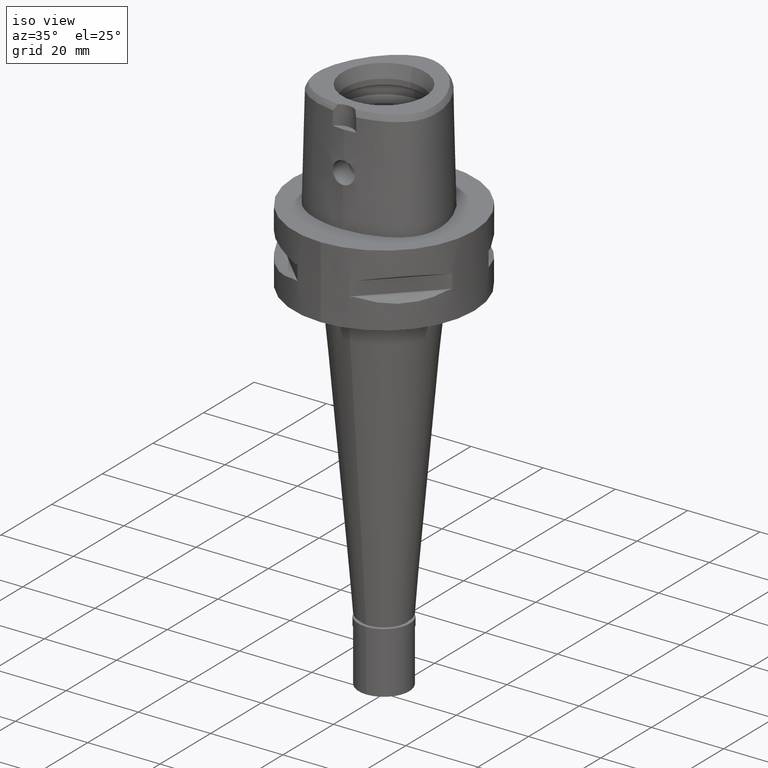
[diagram: clean part render]
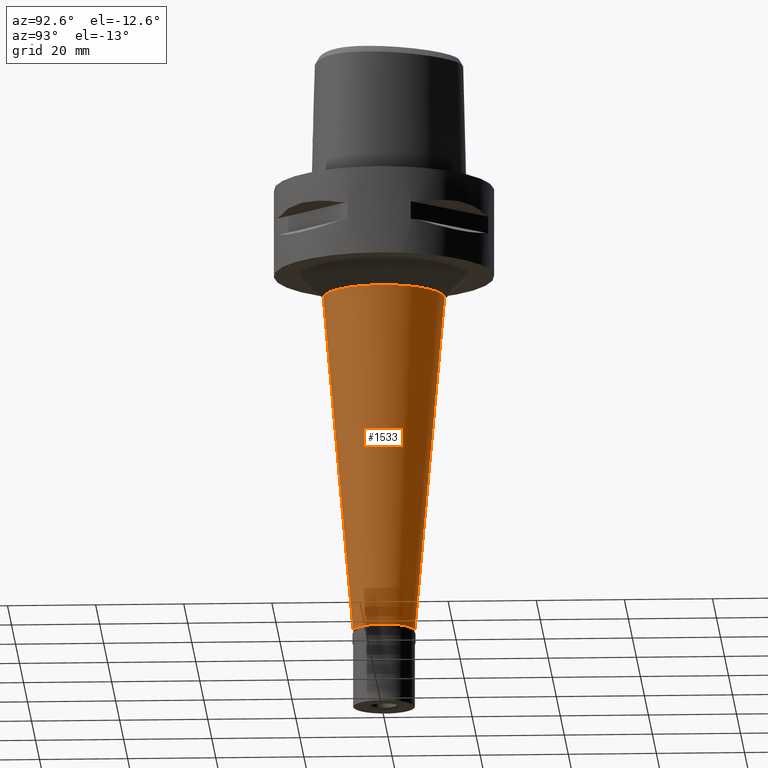
[diagram: tour spotlight — one face highlighted and labeled with its STEP entity id]
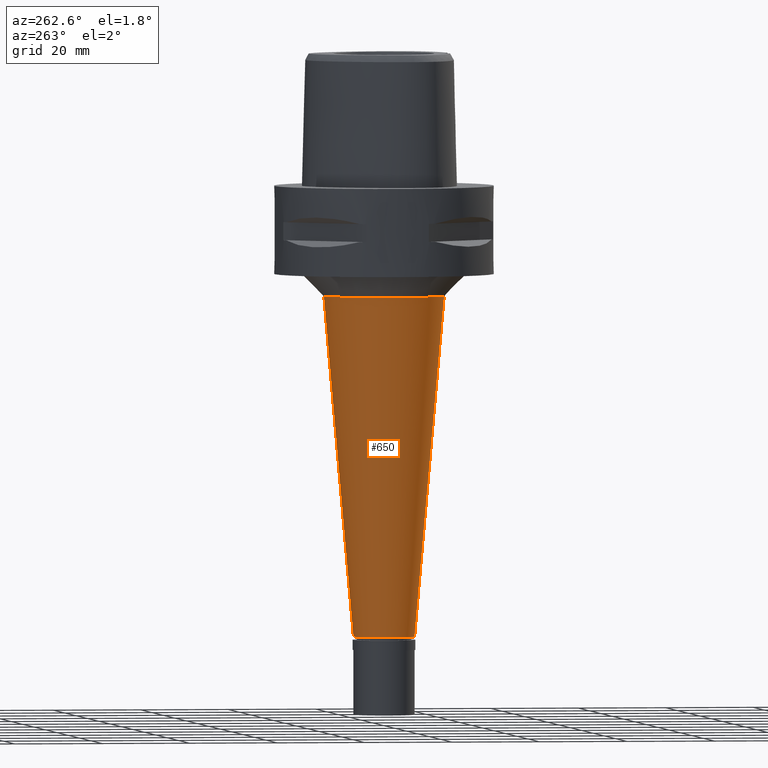
[diagram: tour spotlight — one face highlighted and labeled with its STEP entity id]
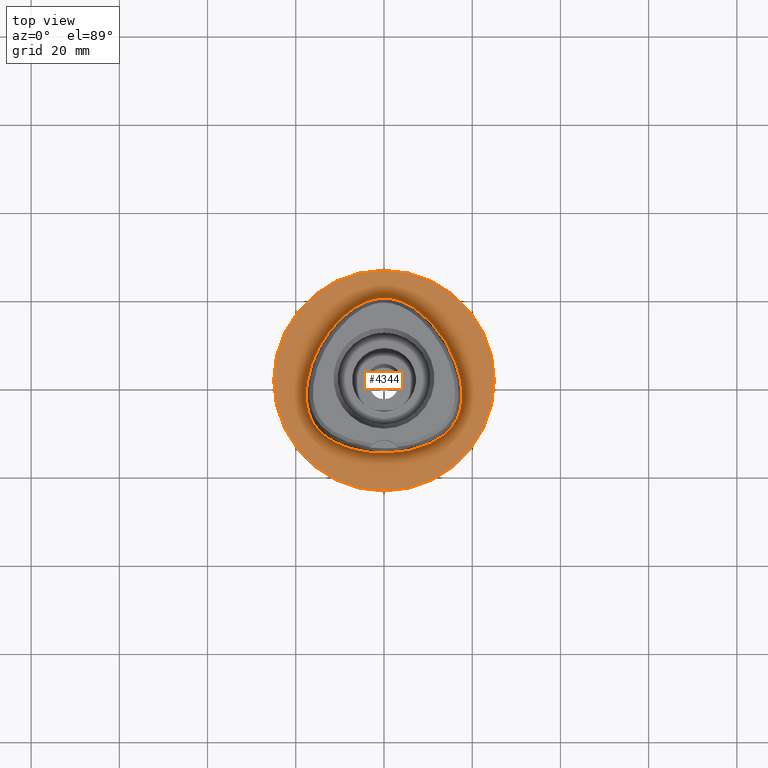
[diagram: tour spotlight — one face highlighted and labeled with its STEP entity id]
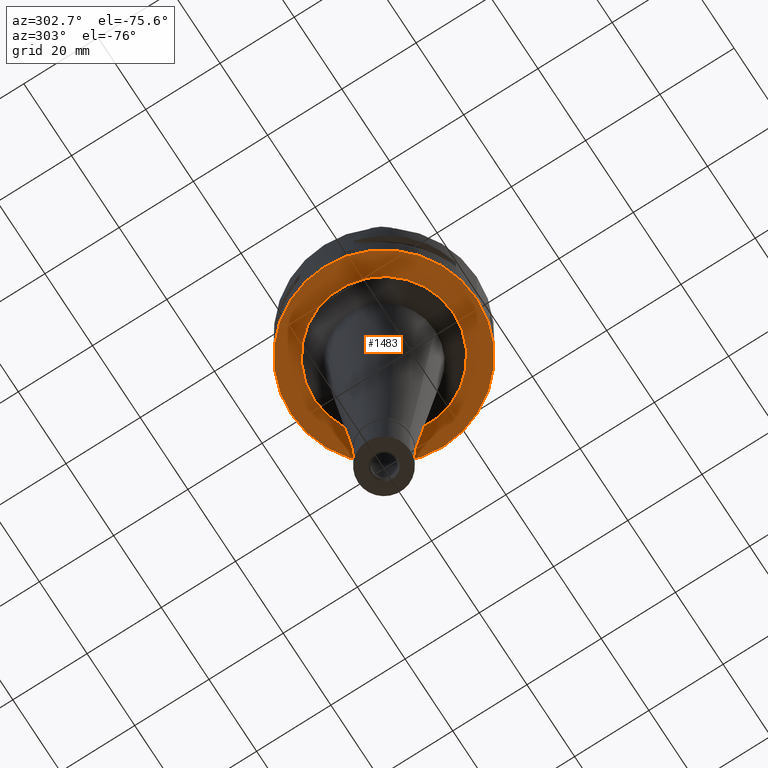
[diagram: tour spotlight — one face highlighted and labeled with its STEP entity id]
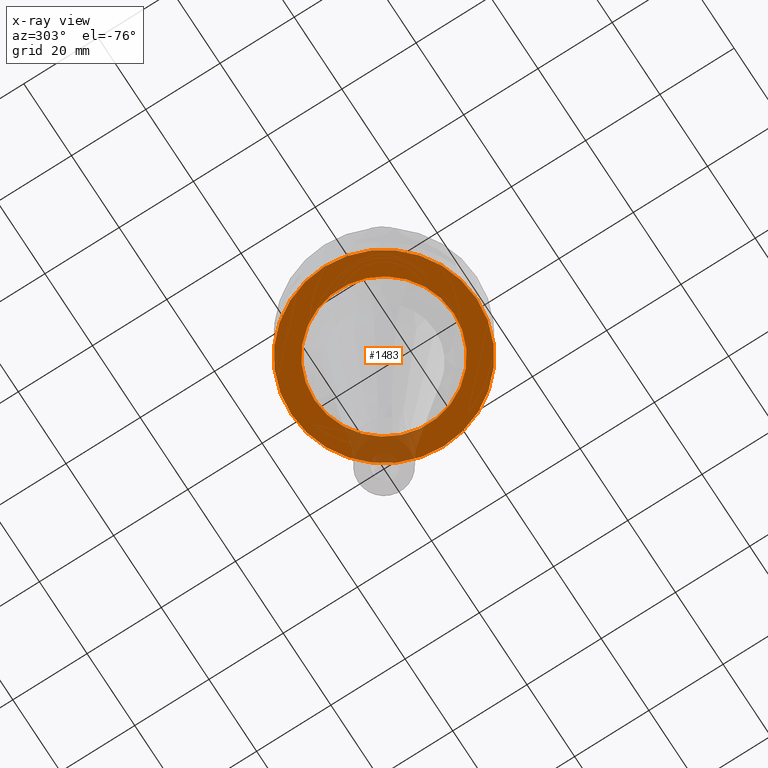
[diagram: x-ray of the same camera — body ghosted, this tour face saturated]
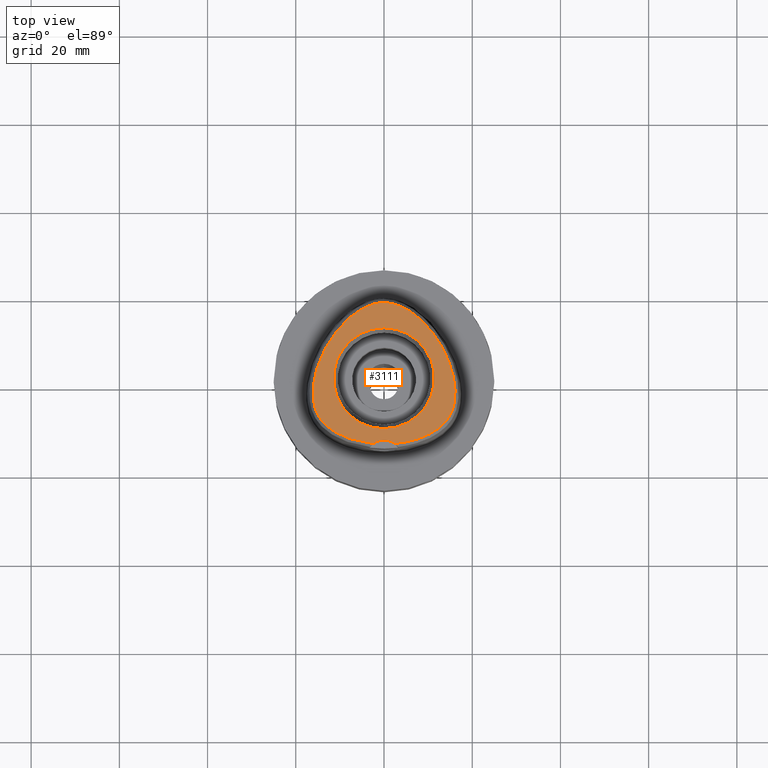
[diagram: tour spotlight — one face highlighted and labeled with its STEP entity id]
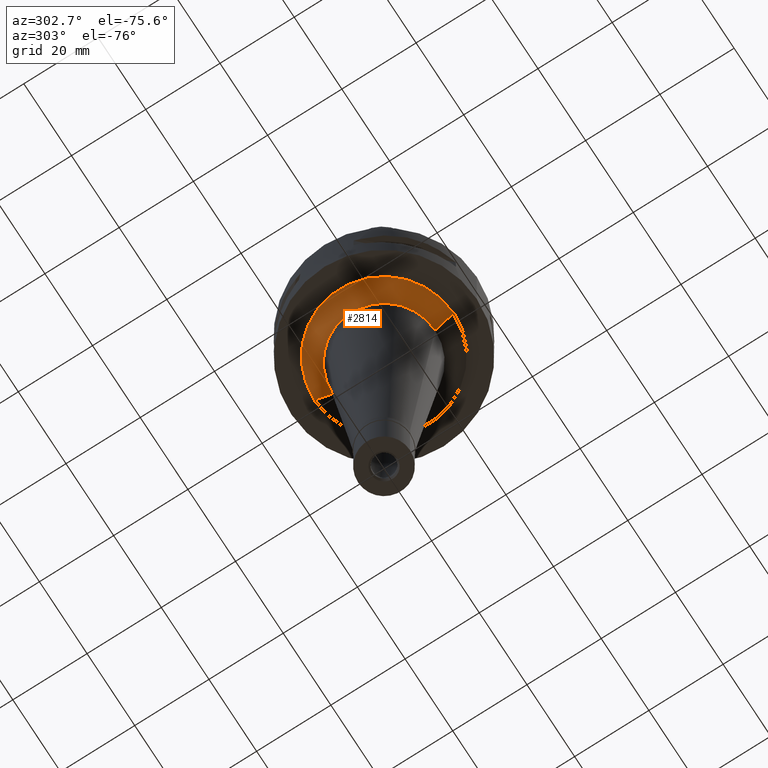
[diagram: tour spotlight — one face highlighted and labeled with its STEP entity id]
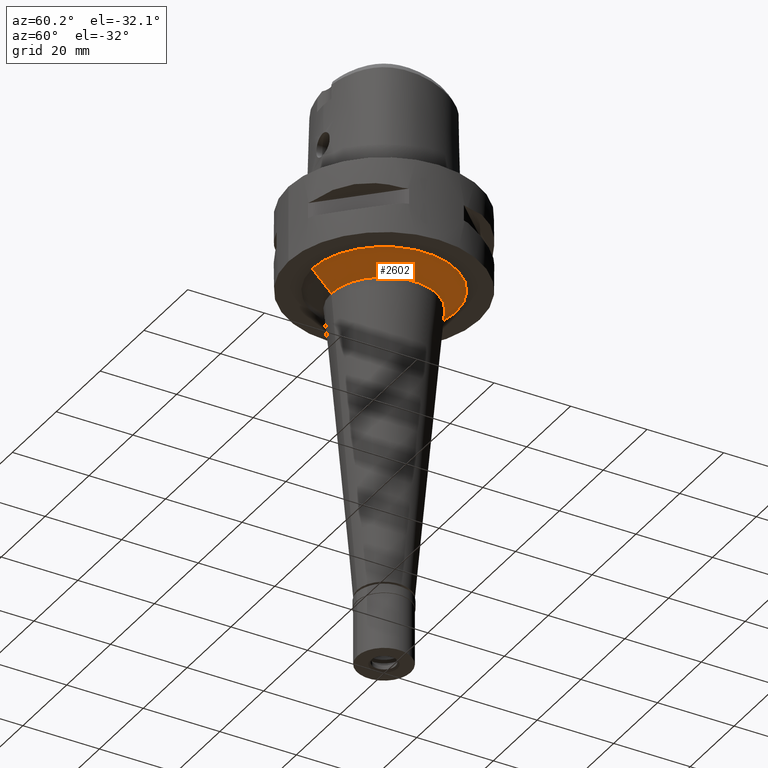
[diagram: tour spotlight — one face highlighted and labeled with its STEP entity id]
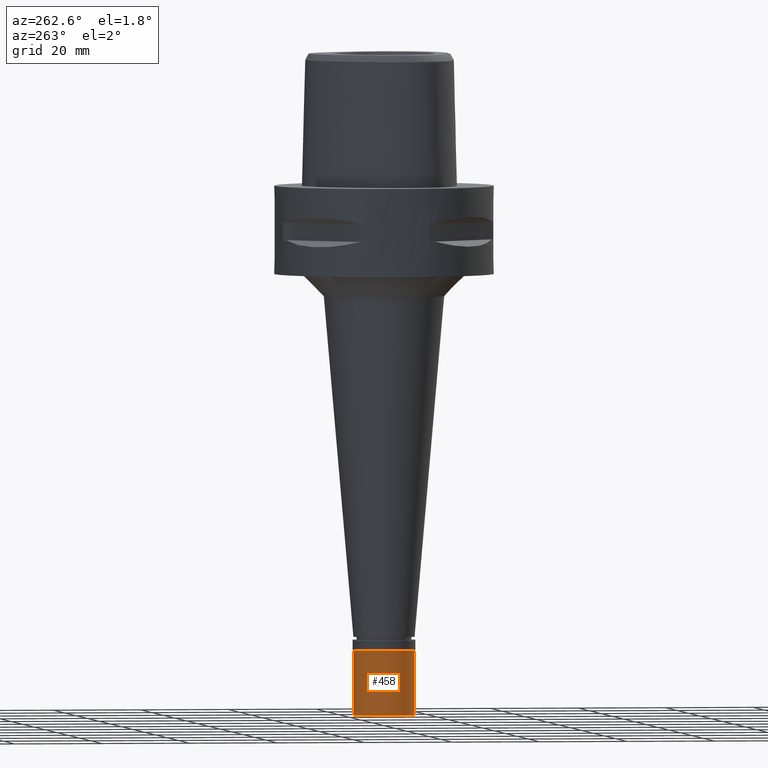
[diagram: tour spotlight — one face highlighted and labeled with its STEP entity id]
A machine part: a face-by-face anatomy tour. The part has 93 B-rep faces; the first image is the clean iso view, then the 8 largest visible faces are spotlighted one at a time (largest first), each with its STEP entity span.

Face 1 — auxiliary view, entity #1533. In plain terms, the highlighted conical surface has half-angle 5 deg.
Definition (entity closure, byte-faithful):
#105 = FACE_OUTER_BOUND ( 'NONE', #4022, .T. ) ;
#202 = VECTOR ( 'NONE', #1246, 1000.000000000000114 ) ;
#260 = EDGE_CURVE ( 'NONE', #1053, #1766, #4054, .T. ) ;
#551 = EDGE_CURVE ( 'NONE', #1766, #2053, #1741, .T. ) ;
#594 = CARTESIAN_POINT ( 'NONE',  ( 0.0000000000000000000, 0.0000000000000000000, -25.00000000000000000 ) ) ;
#649 = CARTESIAN_POINT ( 'NONE',  ( 0.0000000000000000000, 0.0000000000000000000, -102.2999999999999972 ) ) ;
#827 = CARTESIAN_POINT ( 'NONE',  ( 0.0000000000000000000, -13.76287369054999843, -25.00000000000000000 ) ) ;
#845 = DIRECTION ( 'NONE',  ( 0.0000000000000000000, 1.000000000000000000, 0.0000000000000000000 ) ) ;
#1053 = VERTEX_POINT ( 'NONE', #827 ) ;
#1124 = VECTOR ( 'NONE', #1844, 1000.000000000000114 ) ;
#1175 = AXIS2_PLACEMENT_3D ( 'NONE', #649, #4660, #4682 ) ;
#1200 = LINE ( 'NONE', #4490, #202 ) ;
#1246 = DIRECTION ( 'NONE',  ( 0.0000000000000000000, -0.08715574274763414342, -0.9961946980917475436 ) ) ;
#1341 = DIRECTION ( 'NONE',  ( 0.0000000000000000000, -1.000000000000000000, 0.0000000000000000000 ) ) ;
#1533 = ADVANCED_FACE ( 'NONE', ( #105 ), #3408, .T. ) ;
#1560 = ORIENTED_EDGE ( 'NONE', *, *, #260, .T. ) ;
#1741 = CIRCLE ( 'NONE', #1175, 7.000000000003000267 ) ;
#1766 = VERTEX_POINT ( 'NONE', #2883 ) ;
#1844 = DIRECTION ( 'NONE',  ( 0.0000000000000000000, 0.08715574274763414342, -0.9961946980917475436 ) ) ;
#1975 = ORIENTED_EDGE ( 'NONE', *, *, #4073, .F. ) ;
#2053 = VERTEX_POINT ( 'NONE', #2332 ) ;
#2275 = CARTESIAN_POINT ( 'NONE',  ( 0.0000000000000000000, -13.76287369054999843, -25.00000000000000000 ) ) ;
#2332 = CARTESIAN_POINT ( 'NONE',  ( 0.0000000000000000000, 7.000000000002000178, -102.2999999999999972 ) ) ;
#2793 = ORIENTED_EDGE ( 'NONE', *, *, #3757, .F. ) ;
#2883 = CARTESIAN_POINT ( 'NONE',  ( 0.0000000000000000000, -7.000000000003000267, -102.2999999999999972 ) ) ;
#2954 = ORIENTED_EDGE ( 'NONE', *, *, #551, .T. ) ;
#3408 = CONICAL_SURFACE ( 'NONE', #4631, 10.38143684527999966, 0.08726646259969973729 ) ;
#3442 = DIRECTION ( 'NONE',  ( 0.0000000000000000000, 0.0000000000000000000, 1.000000000000000000 ) ) ;
#3757 = EDGE_CURVE ( 'NONE', #4033, #2053, #1200, .T. ) ;
#3763 = CIRCLE ( 'NONE', #4523, 13.76287369055999932 ) ;
#3971 = DIRECTION ( 'NONE',  ( 0.0000000000000000000, 0.0000000000000000000, 1.000000000000000000 ) ) ;
#4022 = EDGE_LOOP ( 'NONE', ( #1975, #1560, #2954, #2793 ) ) ;
#4033 = VERTEX_POINT ( 'NONE', #4661 ) ;
#4054 = LINE ( 'NONE', #2275, #1124 ) ;
#4073 = EDGE_CURVE ( 'NONE', #1053, #4033, #3763, .T. ) ;
#4180 = CARTESIAN_POINT ( 'NONE',  ( 0.0000000000000000000, 0.0000000000000000000, -63.64999999999999858 ) ) ;
#4490 = CARTESIAN_POINT ( 'NONE',  ( 0.0000000000000000000, 13.76287369054999843, -25.00000000000000000 ) ) ;
#4523 = AXIS2_PLACEMENT_3D ( 'NONE', #594, #3971, #1341 ) ;
#4631 = AXIS2_PLACEMENT_3D ( 'NONE', #4180, #3442, #845 ) ;
#4660 = DIRECTION ( 'NONE',  ( 0.0000000000000000000, 0.0000000000000000000, 1.000000000000000000 ) ) ;
#4661 = CARTESIAN_POINT ( 'NONE',  ( 0.0000000000000000000, 13.76287369054999843, -25.00000000000000000 ) ) ;
#4682 = DIRECTION ( 'NONE',  ( 0.0000000000000000000, -1.000000000000000000, 0.0000000000000000000 ) ) ;

Face 2 — auxiliary view, entity #650. In plain terms, the highlighted conical surface has half-angle 5 deg.
Definition (entity closure, byte-faithful):
#202 = VECTOR ( 'NONE', #1246, 1000.000000000000114 ) ;
#235 = DIRECTION ( 'NONE',  ( 0.0000000000000000000, 1.000000000000000000, 0.0000000000000000000 ) ) ;
#260 = EDGE_CURVE ( 'NONE', #1053, #1766, #4054, .T. ) ;
#545 = DIRECTION ( 'NONE',  ( 0.0000000000000000000, -1.000000000000000000, 0.0000000000000000000 ) ) ;
#593 = CARTESIAN_POINT ( 'NONE',  ( 0.0000000000000000000, 0.0000000000000000000, -63.64999999999999858 ) ) ;
#650 = ADVANCED_FACE ( 'NONE', ( #2841 ), #1551, .T. ) ;
#759 = EDGE_CURVE ( 'NONE', #1053, #4033, #1477, .T. ) ;
#827 = CARTESIAN_POINT ( 'NONE',  ( 0.0000000000000000000, -13.76287369054999843, -25.00000000000000000 ) ) ;
#883 = EDGE_LOOP ( 'NONE', ( #940, #1633, #2968, #4197 ) ) ;
#940 = ORIENTED_EDGE ( 'NONE', *, *, #1399, .T. ) ;
#1053 = VERTEX_POINT ( 'NONE', #827 ) ;
#1124 = VECTOR ( 'NONE', #1844, 1000.000000000000114 ) ;
#1138 = DIRECTION ( 'NONE',  ( 0.0000000000000000000, 0.0000000000000000000, 1.000000000000000000 ) ) ;
#1178 = CIRCLE ( 'NONE', #1256, 7.000000000003000267 ) ;
#1200 = LINE ( 'NONE', #4490, #202 ) ;
#1246 = DIRECTION ( 'NONE',  ( 0.0000000000000000000, -0.08715574274763414342, -0.9961946980917475436 ) ) ;
#1256 = AXIS2_PLACEMENT_3D ( 'NONE', #1493, #1138, #3732 ) ;
#1399 = EDGE_CURVE ( 'NONE', #2053, #1766, #1178, .T. ) ;
#1417 = DIRECTION ( 'NONE',  ( 0.0000000000000000000, 0.0000000000000000000, -1.000000000000000000 ) ) ;
#1477 = CIRCLE ( 'NONE', #2495, 13.76287369054999843 ) ;
#1493 = CARTESIAN_POINT ( 'NONE',  ( 0.0000000000000000000, 0.0000000000000000000, -102.2999999999999972 ) ) ;
#1551 = CONICAL_SURFACE ( 'NONE', #3785, 10.38143684527999966, 0.08726646259969973729 ) ;
#1633 = ORIENTED_EDGE ( 'NONE', *, *, #260, .F. ) ;
#1766 = VERTEX_POINT ( 'NONE', #2883 ) ;
#1784 = CARTESIAN_POINT ( 'NONE',  ( 0.0000000000000000000, 0.0000000000000000000, -25.00000000000000000 ) ) ;
#1844 = DIRECTION ( 'NONE',  ( 0.0000000000000000000, 0.08715574274763414342, -0.9961946980917475436 ) ) ;
#2053 = VERTEX_POINT ( 'NONE', #2332 ) ;
#2275 = CARTESIAN_POINT ( 'NONE',  ( 0.0000000000000000000, -13.76287369054999843, -25.00000000000000000 ) ) ;
#2332 = CARTESIAN_POINT ( 'NONE',  ( 0.0000000000000000000, 7.000000000002000178, -102.2999999999999972 ) ) ;
#2495 = AXIS2_PLACEMENT_3D ( 'NONE', #1784, #1417, #545 ) ;
#2841 = FACE_OUTER_BOUND ( 'NONE', #883, .T. ) ;
#2883 = CARTESIAN_POINT ( 'NONE',  ( 0.0000000000000000000, -7.000000000003000267, -102.2999999999999972 ) ) ;
#2968 = ORIENTED_EDGE ( 'NONE', *, *, #759, .T. ) ;
#3732 = DIRECTION ( 'NONE',  ( 0.0000000000000000000, 1.000000000000000000, 0.0000000000000000000 ) ) ;
#3757 = EDGE_CURVE ( 'NONE', #4033, #2053, #1200, .T. ) ;
#3785 = AXIS2_PLACEMENT_3D ( 'NONE', #593, #4603, #235 ) ;
#4033 = VERTEX_POINT ( 'NONE', #4661 ) ;
#4054 = LINE ( 'NONE', #2275, #1124 ) ;
#4197 = ORIENTED_EDGE ( 'NONE', *, *, #3757, .T. ) ;
#4490 = CARTESIAN_POINT ( 'NONE',  ( 0.0000000000000000000, 13.76287369054999843, -25.00000000000000000 ) ) ;
#4603 = DIRECTION ( 'NONE',  ( 0.0000000000000000000, 0.0000000000000000000, 1.000000000000000000 ) ) ;
#4661 = CARTESIAN_POINT ( 'NONE',  ( 0.0000000000000000000, 13.76287369054999843, -25.00000000000000000 ) ) ;

Face 3 — top view, entity #4344. In plain terms, the highlighted planar face has unit normal (0, 0, -1).
Definition (entity closure, byte-faithful):
#44 = AXIS2_PLACEMENT_3D ( 'NONE', #817, #2669, #1226 ) ;
#69 = CARTESIAN_POINT ( 'NONE',  ( 0.6801907859354098251, 18.69499999999559847, 1.266890238549311931E-13 ) ) ;
#155 = EDGE_CURVE ( 'NONE', #4419, #3645, #864, .T. ) ;
#170 = CARTESIAN_POINT ( 'NONE',  ( 6.327245477132999772E-11, 18.69499999997999851, 1.283047742124999982E-13 ) ) ;
#230 = EDGE_CURVE ( 'NONE', #1382, #1618, #4439, .T. ) ;
#282 = EDGE_LOOP ( 'NONE', ( #4759, #2574 ) ) ;
#330 = CARTESIAN_POINT ( 'NONE',  ( 5.051093167571571563, -16.15562500000254431, 1.266890238549311931E-13 ) ) ;
#394 = CARTESIAN_POINT ( 'NONE',  ( -2.040572357783139612, 18.55015625055377981, -2.252703186207509478E-08 ) ) ;
#396 = CARTESIAN_POINT ( 'NONE',  ( 14.38008119689788167, 8.302343749999957723, 1.266890238549311931E-13 ) ) ;
#497 = FACE_BOUND ( 'NONE', #2461, .T. ) ;
#595 = AXIS2_PLACEMENT_3D ( 'NONE', #4779, #4058, #2963 ) ;
#758 = CARTESIAN_POINT ( 'NONE',  ( 17.49754712306940618, -0.2285937500000930489, 1.266890238549311931E-13 ) ) ;
#817 = CARTESIAN_POINT ( 'NONE',  ( 0.0000000000000000000, 1.224646799146999965E-14, 0.0000000000000000000 ) ) ;
#864 = CIRCLE ( 'NONE', #3965, 25.00000000000000000 ) ;
#1072 = CARTESIAN_POINT ( 'NONE',  ( -16.51672824833155317, 3.703437500192405363, -2.252703186207509478E-08 ) ) ;
#1125 = CARTESIAN_POINT ( 'NONE',  ( 11.68694516583672716, -13.70394531250057213, 1.266890238549311931E-13 ) ) ;
#1162 = CARTESIAN_POINT ( 'NONE',  ( -1.463759372864999924E-11, -16.45500000000000185, 1.294890121053999835E-13 ) ) ;
#1226 = DIRECTION ( 'NONE',  ( 0.0000000000000000000, -1.000000000000000000, 0.0000000000000000000 ) ) ;
#1382 = VERTEX_POINT ( 'NONE', #1865 ) ;
#1451 = CARTESIAN_POINT ( 'NONE',  ( -17.16495051834907315, -7.165908203285286326, -2.252703186207509478E-08 ) ) ;
#1472 = CARTESIAN_POINT ( 'NONE',  ( -17.56373942988775738, -5.455996093829836191, -2.252703186207509478E-08 ) ) ;
#1500 = CARTESIAN_POINT ( 'NONE',  ( 16.66912842139748818, -8.445800781250113687, 1.266890238549311931E-13 ) ) ;
#1516 = CARTESIAN_POINT ( 'NONE',  ( -11.46563508066128989, 12.45218750037066258, -2.252703186207509478E-08 ) ) ;
#1518 = CARTESIAN_POINT ( 'NONE',  ( 11.46563508023672640, 12.45218749999961005, 1.266890238549311931E-13 ) ) ;
#1536 = B_SPLINE_CURVE_WITH_KNOTS ( 'NONE', 3,
 ( #3656, #4413, #330, #1847, #1125, #2550, #2232, #1871, #3348, #1500, #4013, #2981, #4432, #758, #2253, #396, #1518, #1568, #3120, #3429, #69, #170 ),
 .UNSPECIFIED., .F., .F.,
 ( 4, 1, 1, 1, 1, 1, 1, 1, 1, 1, 1, 1, 1, 1, 1, 1, 1, 1, 1, 4 ),
 ( 0.0000000000000000000, 0.08333333333346000515, 0.1666666666667000196, 0.2083333333333000081, 0.2499999999998999967, 0.2916666666666000163, 0.3124999999997999933, 0.3333333333331000015, 0.3541666666665000407, 0.3749999999996999622, 0.4166666666664000096, 0.4583333333328999948, 0.4999999999995999866, 0.5833333333328000192, 0.6666666666660999718, 0.7499999999993000044, 0.8333333333324000058, 0.9166666666657000695, 0.9583333333322999747, 1.000000000000000000 ),
 .UNSPECIFIED. ) ;
#1568 = CARTESIAN_POINT ( 'NONE',  ( 7.967839664224537266, 15.83070312499691035, 1.266890238549311931E-13 ) ) ;
#1618 = VERTEX_POINT ( 'NONE', #3058 ) ;
#1826 = DIRECTION ( 'NONE',  ( 0.0000000000000000000, 0.0000000000000000000, -1.000000000000000000 ) ) ;
#1828 = ORIENTED_EDGE ( 'NONE', *, *, #230, .F. ) ;
#1847 = CARTESIAN_POINT ( 'NONE',  ( 8.946741556185015654, -15.03902343750404569, 1.266890238549311931E-13 ) ) ;
#1865 = CARTESIAN_POINT ( 'NONE',  ( 6.327245477132999772E-11, 18.69499999997999851, 1.283047742124999982E-13 ) ) ;
#1871 = CARTESIAN_POINT ( 'NONE',  ( 15.64884224256346812, -10.21298828125385505, 1.266890238549311931E-13 ) ) ;
#1890 = CARTESIAN_POINT ( 'NONE',  ( -4.728927207058283955, 17.73480468801015064, -2.252703186207509478E-08 ) ) ;
#2210 = CARTESIAN_POINT ( 'NONE',  ( -7.967839664576181313, 15.83070312544430536, -2.252703186207509478E-08 ) ) ;
#2228 = CARTESIAN_POINT ( 'NONE',  ( -13.50690093514876011, -12.48264648482576433, -2.252703186207509478E-08 ) ) ;
#2232 = CARTESIAN_POINT ( 'NONE',  ( 14.78833380399962216, -11.28232910156654611, 1.266890238549311931E-13 ) ) ;
#2253 = CARTESIAN_POINT ( 'NONE',  ( 16.51672824780402138, 3.703437499999786997, 1.266890238549311931E-13 ) ) ;
#2461 = EDGE_LOOP ( 'NONE', ( #1828, #3507 ) ) ;
#2548 = CARTESIAN_POINT ( 'NONE',  ( -1.683697722561884103, -16.45500000056451384, -2.252703186207509478E-08 ) ) ;
#2550 = CARTESIAN_POINT ( 'NONE',  ( 13.50690093480192822, -12.48264648437981528, 1.266890238549311931E-13 ) ) ;
#2572 = CARTESIAN_POINT ( 'NONE',  ( -8.946741556378418281, -15.03902343803171426, -2.252703186207509478E-08 ) ) ;
#2574 = ORIENTED_EDGE ( 'NONE', *, *, #155, .F. ) ;
#2601 = CARTESIAN_POINT ( 'NONE',  ( -5.051093167672319417, -16.15562500055322559, -2.252703186207509478E-08 ) ) ;
#2669 = DIRECTION ( 'NONE',  ( 0.0000000000000000000, 0.0000000000000000000, -1.000000000000000000 ) ) ;
#2774 = CIRCLE ( 'NONE', #595, 25.00000000000000000 ) ;
#2931 = CARTESIAN_POINT ( 'NONE',  ( -14.78833380441265177, -11.28232910194992300, -2.252703186207509478E-08 ) ) ;
#2958 = CARTESIAN_POINT ( 'NONE',  ( -17.71143735617546255, -3.269218749996134488, -2.252703186207509478E-08 ) ) ;
#2963 = DIRECTION ( 'NONE',  ( 0.0000000000000000000, 1.000000000000000000, 0.0000000000000000000 ) ) ;
#2981 = CARTESIAN_POINT ( 'NONE',  ( 17.56373942933424104, -5.455996093750941078, 1.266890238549311931E-13 ) ) ;
#3000 = CARTESIAN_POINT ( 'NONE',  ( -14.38008119738573143, 8.302343750282300761, -2.252703186207509478E-08 ) ) ;
#3058 = CARTESIAN_POINT ( 'NONE',  ( -1.463759372864999924E-11, -16.45500000000000185, 1.294890121053999835E-13 ) ) ;
#3120 = CARTESIAN_POINT ( 'NONE',  ( 4.728927206815265905, 17.73480468749866290, 1.266890238549311931E-13 ) ) ;
#3133 = PLANE ( 'NONE',  #44 ) ;
#3324 = CARTESIAN_POINT ( 'NONE',  ( -15.64884224301975024, -10.21298828158365346, -2.252703186207509478E-08 ) ) ;
#3348 = CARTESIAN_POINT ( 'NONE',  ( 16.20602471963519164, -9.356552734374940172, 1.266890238549311931E-13 ) ) ;
#3366 = DIRECTION ( 'NONE',  ( 0.0000000000000000000, -1.000000000000000000, 0.0000000000000000000 ) ) ;
#3429 = CARTESIAN_POINT ( 'NONE',  ( 2.040572357694348860, 18.55015624999780854, 1.266890238549311931E-13 ) ) ;
#3440 = FACE_OUTER_BOUND ( 'NONE', #282, .T. ) ;
#3507 = ORIENTED_EDGE ( 'NONE', *, *, #4562, .F. ) ;
#3645 = VERTEX_POINT ( 'NONE', #3976 ) ;
#3656 = CARTESIAN_POINT ( 'NONE',  ( -1.463759372864999924E-11, -16.45500000000000185, 1.294890121053999835E-13 ) ) ;
#3713 = CARTESIAN_POINT ( 'NONE',  ( -0.6801907859079586727, 18.69500000056697431, -2.252703186207509478E-08 ) ) ;
#3965 = AXIS2_PLACEMENT_3D ( 'NONE', #4009, #1826, #3366 ) ;
#3976 = CARTESIAN_POINT ( 'NONE',  ( 0.0000000000000000000, 25.00000000000000000, 0.0000000000000000000 ) ) ;
#4009 = CARTESIAN_POINT ( 'NONE',  ( 0.0000000000000000000, 1.295676313497999978E-14, 0.0000000000000000000 ) ) ;
#4013 = CARTESIAN_POINT ( 'NONE',  ( 17.16495051780308145, -7.165908203125037623, 1.266890238549311931E-13 ) ) ;
#4058 = DIRECTION ( 'NONE',  ( 0.0000000000000000000, 0.0000000000000000000, -1.000000000000000000 ) ) ;
#4069 = CARTESIAN_POINT ( 'NONE',  ( 6.327245477132999772E-11, 18.69499999997999851, 1.283047742124999982E-13 ) ) ;
#4096 = CARTESIAN_POINT ( 'NONE',  ( 0.0000000000000000000, -25.00000000000000000, 0.0000000000000000000 ) ) ;
#4246 = EDGE_CURVE ( 'NONE', #3645, #4419, #2774, .T. ) ;
#4344 = ADVANCED_FACE ( 'NONE', ( #3440, #497 ), #3133, .F. ) ;
#4387 = CARTESIAN_POINT ( 'NONE',  ( -16.66912842190885868, -8.445800781479288588, -2.252703186207509478E-08 ) ) ;
#4411 = CARTESIAN_POINT ( 'NONE',  ( -11.68694516611753009, -13.70394531299874785, -2.252703186207509478E-08 ) ) ;
#4413 = CARTESIAN_POINT ( 'NONE',  ( 1.683697722516158901, -16.45499999999859853, 1.266890238549311931E-13 ) ) ;
#4419 = VERTEX_POINT ( 'NONE', #4096 ) ;
#4432 = CARTESIAN_POINT ( 'NONE',  ( 17.71143735561749111, -3.269218750000518980, 1.266890238549311931E-13 ) ) ;
#4439 = B_SPLINE_CURVE_WITH_KNOTS ( 'NONE', 3,
 ( #4069, #3713, #394, #1890, #2210, #1516, #3000, #1072, #4728, #2958, #1472, #1451, #4387, #4453, #3324, #2931, #2228, #4411, #2572, #2601, #2548, #1162 ),
 .UNSPECIFIED., .F., .F.,
 ( 4, 1, 1, 1, 1, 1, 1, 1, 1, 1, 1, 1, 1, 1, 1, 1, 1, 1, 1, 4 ),
 ( 0.0000000000000000000, 0.04166666666790999618, 0.08333333333452000447, 0.1666666666678000008, 0.2500000000009999779, 0.3333333333342000104, 0.4166666666675000186, 0.5000000000006999956, 0.5416666666673000119, 0.5833333333339000282, 0.6250000000005000445, 0.6458333333337999971, 0.6666666666671999808, 0.6875000000005000445, 0.7083333333336999660, 0.7500000000004000134, 0.7916666666670000296, 0.8333333333336000459, 0.9166666666668999985, 1.000000000000000000 ),
 .UNSPECIFIED. ) ;
#4453 = CARTESIAN_POINT ( 'NONE',  ( -16.20602472013149509, -9.356552734657469728, -2.252703186207509478E-08 ) ) ;
#4562 = EDGE_CURVE ( 'NONE', #1618, #1382, #1536, .T. ) ;
#4728 = CARTESIAN_POINT ( 'NONE',  ( -17.49754712363003506, -0.2285937499011347074, -2.252703186207509478E-08 ) ) ;
#4759 = ORIENTED_EDGE ( 'NONE', *, *, #4246, .F. ) ;
#4779 = CARTESIAN_POINT ( 'NONE',  ( 0.0000000000000000000, 1.295676313497999978E-14, 0.0000000000000000000 ) ) ;

Face 4 — auxiliary view, entity #1483. An x-ray twin of the same camera follows (body ghosted, this face saturated) — the face is partly hidden behind the body. In plain terms, the highlighted planar face has unit normal (0, 0, -1).
Definition (entity closure, byte-faithful):
#41 = DIRECTION ( 'NONE',  ( 0.0000000000000000000, 0.0000000000000000000, -1.000000000000000000 ) ) ;
#138 = DIRECTION ( 'NONE',  ( 0.0000000000000000000, 0.0000000000000000000, -1.000000000000000000 ) ) ;
#200 = EDGE_LOOP ( 'NONE', ( #3080, #4170 ) ) ;
#293 = VERTEX_POINT ( 'NONE', #1209 ) ;
#535 = CARTESIAN_POINT ( 'NONE',  ( 0.0000000000000000000, 0.0000000000000000000, -20.00000000000000000 ) ) ;
#561 = VERTEX_POINT ( 'NONE', #2436 ) ;
#566 = EDGE_LOOP ( 'NONE', ( #2942, #3457 ) ) ;
#777 = PLANE ( 'NONE',  #1946 ) ;
#798 = FACE_BOUND ( 'NONE', #566, .T. ) ;
#927 = EDGE_CURVE ( 'NONE', #293, #561, #2956, .T. ) ;
#1209 = CARTESIAN_POINT ( 'NONE',  ( 0.0000000000000000000, -18.76287369055000198, -20.00000000000000000 ) ) ;
#1444 = DIRECTION ( 'NONE',  ( 0.0000000000000000000, 0.0000000000000000000, -1.000000000000000000 ) ) ;
#1483 = ADVANCED_FACE ( 'NONE', ( #4111, #798 ), #777, .T. ) ;
#1659 = CARTESIAN_POINT ( 'NONE',  ( 0.0000000000000000000, 1.295676313497999978E-14, -20.00000000000000000 ) ) ;
#1706 = CARTESIAN_POINT ( 'NONE',  ( 0.0000000000000000000, 25.00000000000000000, -20.00000000000000000 ) ) ;
#1837 = VERTEX_POINT ( 'NONE', #1706 ) ;
#1902 = EDGE_CURVE ( 'NONE', #561, #293, #3873, .T. ) ;
#1907 = CARTESIAN_POINT ( 'NONE',  ( 0.0000000000000000000, 0.0000000000000000000, -20.00000000000000000 ) ) ;
#1946 = AXIS2_PLACEMENT_3D ( 'NONE', #1907, #41, #3752 ) ;
#2038 = CIRCLE ( 'NONE', #4724, 25.00000000000000000 ) ;
#2072 = DIRECTION ( 'NONE',  ( 0.0000000000000000000, 0.0000000000000000000, 1.000000000000000000 ) ) ;
#2104 = AXIS2_PLACEMENT_3D ( 'NONE', #535, #138, #2777 ) ;
#2252 = EDGE_CURVE ( 'NONE', #1837, #2549, #4408, .T. ) ;
#2410 = DIRECTION ( 'NONE',  ( 0.0000000000000000000, 1.000000000000000000, 0.0000000000000000000 ) ) ;
#2436 = CARTESIAN_POINT ( 'NONE',  ( 0.0000000000000000000, 18.76287369055000198, -20.00000000000000000 ) ) ;
#2449 = DIRECTION ( 'NONE',  ( 0.0000000000000000000, -1.000000000000000000, 0.0000000000000000000 ) ) ;
#2494 = CARTESIAN_POINT ( 'NONE',  ( 0.0000000000000000000, -25.00000000000000000, -20.00000000000000000 ) ) ;
#2549 = VERTEX_POINT ( 'NONE', #2494 ) ;
#2614 = EDGE_CURVE ( 'NONE', #2549, #1837, #2038, .T. ) ;
#2730 = DIRECTION ( 'NONE',  ( 0.0000000000000000000, 0.0000000000000000000, 1.000000000000000000 ) ) ;
#2777 = DIRECTION ( 'NONE',  ( 0.0000000000000000000, -1.000000000000000000, 0.0000000000000000000 ) ) ;
#2801 = AXIS2_PLACEMENT_3D ( 'NONE', #3515, #2072, #2410 ) ;
#2887 = AXIS2_PLACEMENT_3D ( 'NONE', #3314, #1444, #4378 ) ;
#2942 = ORIENTED_EDGE ( 'NONE', *, *, #1902, .F. ) ;
#2956 = CIRCLE ( 'NONE', #2104, 18.76287369055000198 ) ;
#3080 = ORIENTED_EDGE ( 'NONE', *, *, #2252, .F. ) ;
#3314 = CARTESIAN_POINT ( 'NONE',  ( 0.0000000000000000000, 0.0000000000000000000, -20.00000000000000000 ) ) ;
#3457 = ORIENTED_EDGE ( 'NONE', *, *, #927, .F. ) ;
#3515 = CARTESIAN_POINT ( 'NONE',  ( 0.0000000000000000000, 1.295676313497999978E-14, -20.00000000000000000 ) ) ;
#3752 = DIRECTION ( 'NONE',  ( 0.0000000000000000000, -1.000000000000000000, 0.0000000000000000000 ) ) ;
#3873 = CIRCLE ( 'NONE', #2887, 18.76287369055000198 ) ;
#4111 = FACE_OUTER_BOUND ( 'NONE', #200, .T. ) ;
#4170 = ORIENTED_EDGE ( 'NONE', *, *, #2614, .F. ) ;
#4378 = DIRECTION ( 'NONE',  ( 0.0000000000000000000, 1.000000000000000000, 0.0000000000000000000 ) ) ;
#4408 = CIRCLE ( 'NONE', #2801, 25.00000000000000000 ) ;
#4724 = AXIS2_PLACEMENT_3D ( 'NONE', #1659, #2730, #2449 ) ;

Face 5 — top view, entity #3111. In plain terms, the highlighted planar face has unit normal (0, 0, 1).
Definition (entity closure, byte-faithful):
#10 = EDGE_CURVE ( 'NONE', #1458, #3422, #1752, .T. ) ;
#33 = CARTESIAN_POINT ( 'NONE',  ( -2.535517866335888826, -14.79323888261529163, 29.99999999999795364 ) ) ;
#52 = CARTESIAN_POINT ( 'NONE',  ( -15.04149970408389692, -8.249836848500672559, 30.00000000000220268 ) ) ;
#77 = CARTESIAN_POINT ( 'NONE',  ( -15.29229544369630744, -7.721097396977541827, 29.99999999999276312 ) ) ;
#97 = CARTESIAN_POINT ( 'NONE',  ( -12.68647747557192318, 7.869569494475533666, 29.99999999999645439 ) ) ;
#110 = CARTESIAN_POINT ( 'NONE',  ( 15.04259016984479480, -8.247723288183202328, 30.00000000000785505 ) ) ;
#121 = CARTESIAN_POINT ( 'NONE',  ( -15.90223487644116673, -0.6162487013688223714, 29.99999999998960121 ) ) ;
#136 = CARTESIAN_POINT ( 'NONE',  ( 14.08238499152025547, -9.704590128438766783, 29.99999999999604938 ) ) ;
#166 = CARTESIAN_POINT ( 'NONE',  ( 15.87349190487882744, -5.869792298898143912, 29.99999999999603517 ) ) ;
#187 = CARTESIAN_POINT ( 'NONE',  ( 6.048015628560842849, 15.09357031579891917, 30.00000000000100542 ) ) ;
#190 = CARTESIAN_POINT ( 'NONE',  ( 9.755668685253061412, -12.92551394022891387, 29.99999999999697664 ) ) ;
#222 = CARTESIAN_POINT ( 'NONE',  ( 11.92667412982090980, 9.061218325781794647, 29.99999999999609201 ) ) ;
#421 = CARTESIAN_POINT ( 'NONE',  ( -13.38439869301779694, 6.635703175839384294, 29.99999999999691980 ) ) ;
#489 = CARTESIAN_POINT ( 'NONE',  ( -16.08550869467269351, -4.376322360225803898, 29.99999999999931788 ) ) ;
#501 = CARTESIAN_POINT ( 'NONE',  ( 9.420872132874700711, 12.20574557692616047, 30.00000000000184741 ) ) ;
#536 = AXIS2_PLACEMENT_3D ( 'NONE', #3710, #4407, #2977 ) ;
#544 = CARTESIAN_POINT ( 'NONE',  ( -1.160151454488510980, 17.07862209883453986, 29.99999999999336353 ) ) ;
#608 = CARTESIAN_POINT ( 'NONE',  ( 14.01089202938222833, 5.377385268370820093, 30.00000000000161293 ) ) ;
#750 = VERTEX_POINT ( 'NONE', #3920 ) ;
#792 = CARTESIAN_POINT ( 'NONE',  ( -8.556928701964805484, 13.07433695898811798, 29.99999999999978684 ) ) ;
#809 = CARTESIAN_POINT ( 'NONE',  ( -12.65209017756043330, -11.12734424253253351, 29.99999999999297629 ) ) ;
#834 = CARTESIAN_POINT ( 'NONE',  ( -13.66338899148611574, -10.18351204678590172, 29.99999999999864997 ) ) ;
#862 = CARTESIAN_POINT ( 'NONE',  ( -3.123276563984521914, -14.73562494724893668, 29.99999999999922551 ) ) ;
#875 = CARTESIAN_POINT ( 'NONE',  ( 15.39668103801478338, 1.657188505493808917, 29.99999999999576517 ) ) ;
#886 = ORIENTED_EDGE ( 'NONE', *, *, #3744, .F. ) ;
#924 = CARTESIAN_POINT ( 'NONE',  ( -6.303691439121000273E-11, 17.15328888647999861, 30.00000000000000000 ) ) ;
#929 = CARTESIAN_POINT ( 'NONE',  ( 3.130495111450635637, -14.73481892792016268, 30.00000000000046896 ) ) ;
#989 = CARTESIAN_POINT ( 'NONE',  ( 6.658132732489348449, -14.05774790738803226, 29.99999999999908340 ) ) ;
#1041 = CARTESIAN_POINT ( 'NONE',  ( 1.774127352510579181, 16.97169788998777662, 29.99999999999915090 ) ) ;
#1147 = VERTEX_POINT ( 'NONE', #3555 ) ;
#1159 = CARTESIAN_POINT ( 'NONE',  ( -2.406542353497000075, -14.80491723099000012, 30.00000000000000000 ) ) ;
#1176 = CARTESIAN_POINT ( 'NONE',  ( -5.257871200567935333, 15.58649213537116651, 29.99999999999723244 ) ) ;
#1204 = CARTESIAN_POINT ( 'NONE',  ( 0.0000000000000000000, 1.570614979474999723E-14, 30.00000000000000000 ) ) ;
#1217 = CARTESIAN_POINT ( 'NONE',  ( -10.27907733182443550, 11.24278573582373575, 29.99999999999090505 ) ) ;
#1220 = CARTESIAN_POINT ( 'NONE',  ( 0.0000000000000000000, 1.570614979474999723E-14, 30.00000000000000000 ) ) ;
#1269 = CARTESIAN_POINT ( 'NONE',  ( -9.420854217683539034, 12.20577134109779749, 29.99999999999673861 ) ) ;
#1278 = EDGE_CURVE ( 'NONE', #1147, #1458, #4167, .T. ) ;
#1282 = CARTESIAN_POINT ( 'NONE',  ( 11.36765809995768528, -12.04801986073126763, 30.00000000000490985 ) ) ;
#1291 = CARTESIAN_POINT ( 'NONE',  ( -0.1909045559980127038, 17.15328888648249972, 29.99999999999878142 ) ) ;
#1311 = CARTESIAN_POINT ( 'NONE',  ( -3.077178008231346240, 16.60571267458161770, 30.00000000000361666 ) ) ;
#1324 = CARTESIAN_POINT ( 'NONE',  ( 16.11273027397131585, -2.627494158581384465, 30.00000000000020250 ) ) ;
#1353 = CARTESIAN_POINT ( 'NONE',  ( 14.76450668991030390, -8.742560395151283359, 30.00000000000152767 ) ) ;
#1458 = VERTEX_POINT ( 'NONE', #1159 ) ;
#1527 = CARTESIAN_POINT ( 'NONE',  ( -11.36350786442219807, -12.05063008427935678, 29.99999999999495159 ) ) ;
#1552 = CARTESIAN_POINT ( 'NONE',  ( -4.150496093830900790, -14.59917355179992349, 29.99999999999525002 ) ) ;
#1575 = CARTESIAN_POINT ( 'NONE',  ( -15.51623783590942551, -7.150856098906569258, 29.99999999999812417 ) ) ;
#1605 = ORIENTED_EDGE ( 'NONE', *, *, #2593, .F. ) ;
#1607 = CARTESIAN_POINT ( 'NONE',  ( 10.60500548643825169, -12.49469941439521570, 30.00000000000056843 ) ) ;
#1621 = CARTESIAN_POINT ( 'NONE',  ( -6.650243356160426167, -14.05992414833709070, 30.00000000000564171 ) ) ;
#1635 = CARTESIAN_POINT ( 'NONE',  ( 14.44767169633327342, -9.224476417585481869, 29.99999999999852918 ) ) ;
#1679 = CARTESIAN_POINT ( 'NONE',  ( 6.863227115065484440, 14.51498137220640849, 30.00000000000115108 ) ) ;
#1682 = CARTESIAN_POINT ( 'NONE',  ( 15.99982784345678155, -5.151471542955309957, 29.99999999999679900 ) ) ;
#1752 = B_SPLINE_CURVE_WITH_KNOTS ( 'NONE', 3,
 ( #3028, #33, #862, #1552, #4488, #1621, #4119, #1919, #2380, #2663, #1527, #2329, #809, #2304, #834, #2359, #3390, #3098, #52, #77, #1575, #3842, #3049, #3819, #489, #1990, #3461, #4505, #121, #3434, #4462, #4553, #1969, #3070, #421, #97, #3008, #4526, #1217, #1269, #792, #2682, #2282, #2741, #1176, #2647, #3742, #1311, #2043, #2790, #544, #4220, #1291, #3127 ),
 .UNSPECIFIED., .F., .F.,
 ( 4, 1, 1, 1, 1, 1, 1, 1, 1, 1, 1, 1, 1, 1, 1, 1, 1, 1, 1, 1, 1, 1, 1, 1, 1, 1, 1, 1, 1, 1, 1, 1, 1, 1, 1, 1, 1, 1, 1, 1, 1, 1, 1, 1, 1, 1, 1, 1, 1, 1, 1, 4 ),
 ( 0.0000000000000000000, 0.005566907331700066131, 0.02545556918509994659, 0.04534423103860008020, 0.06523289289190004059, 0.08512155474529992105, 0.1050102165987000236, 0.1248988784521999351, 0.1447875403055000065, 0.1646762021588999980, 0.1845648640122999895, 0.2044535258655999499, 0.2243421877191000835, 0.2442308495724999640, 0.2641195114257999244, 0.2840081732792000269, 0.3038968351325999073, 0.3237854969860000098, 0.3436741588394000013, 0.3635628206927999928, 0.3834514825461999843, 0.4033401443995000557, 0.4232288062529999673, 0.4431174681064000698, 0.4630061299597000302, 0.4828947918130999106, 0.5027834536666000442, 0.5226721155199000046, 0.5425607773732999961, 0.5624494392267000986, 0.5823381010799999480, 0.6022267629334999706, 0.6221154247869000731, 0.6420040866403000646, 0.6618927484936000250, 0.6817814103470000164, 0.7016700722005000390, 0.7215587340537999994, 0.7414473959071999909, 0.7613360577605999824, 0.7812247196139999739, 0.8011133814673999654, 0.8210020433207999568, 0.8408907051741000283, 0.8607793670275000197, 0.8806680288810000423, 0.9005566907343299787, 0.9204453525877199782, 0.9403340144411099777, 0.9602226762944999772, 0.9801113381478899766, 1.000000000000000000 ),
 .UNSPECIFIED. ) ;
#1795 = CARTESIAN_POINT ( 'NONE',  ( 3.078265684543895819, 16.60532678263224682, 29.99999999999934630 ) ) ;
#1919 = CARTESIAN_POINT ( 'NONE',  ( -8.809985523415241104, -13.33678107331204643, 29.99999999999841194 ) ) ;
#1969 = CARTESIAN_POINT ( 'NONE',  ( -14.55898035934023049, 4.112421202110840390, 29.99999999999571898 ) ) ;
#1990 = CARTESIAN_POINT ( 'NONE',  ( -16.12543283908635772, -3.535877041748166416, 30.00000000000415668 ) ) ;
#2001 = CARTESIAN_POINT ( 'NONE',  ( 15.68929135223772953, 0.4919393172820291649, 29.99999999999933920 ) ) ;
#2032 = CARTESIAN_POINT ( 'NONE',  ( 15.29323375805639706, -7.718923543003075594, 30.00000000000033751 ) ) ;
#2043 = CARTESIAN_POINT ( 'NONE',  ( -2.411640998825572257, 16.81591728050808143, 29.99999999999915445 ) ) ;
#2131 = DIRECTION ( 'NONE',  ( 1.000000000000000000, 0.0000000000000000000, 0.0000000000000000000 ) ) ;
#2200 = EDGE_LOOP ( 'NONE', ( #886, #4105 ) ) ;
#2282 = CARTESIAN_POINT ( 'NONE',  ( -6.862723739080148988, 14.51536572209086451, 29.99999999999930012 ) ) ;
#2304 = CARTESIAN_POINT ( 'NONE',  ( -13.18915979441350217, -10.65722997876278733, 29.99999999999581846 ) ) ;
#2329 = CARTESIAN_POINT ( 'NONE',  ( -12.04571048959732238, -11.59259605427076423, 29.99999999999928235 ) ) ;
#2359 = CARTESIAN_POINT ( 'NONE',  ( -14.08052509618226722, -9.706873108417855889, 29.99999999999216271 ) ) ;
#2369 = CARTESIAN_POINT ( 'NONE',  ( 2.538962679605456518, -14.79292722369524959, 30.00000000000298073 ) ) ;
#2371 = ORIENTED_EDGE ( 'NONE', *, *, #10, .F. ) ;
#2380 = CARTESIAN_POINT ( 'NONE',  ( -9.750168658358866480, -12.92810664733624471, 29.99999999999975486 ) ) ;
#2448 = DIRECTION ( 'NONE',  ( 0.0000000000000000000, 0.0000000000000000000, 1.000000000000000000 ) ) ;
#2492 = CARTESIAN_POINT ( 'NONE',  ( 0.0000000000000000000, 11.43758326592000074, 30.00000000000000000 ) ) ;
#2521 = FACE_OUTER_BOUND ( 'NONE', #3357, .T. ) ;
#2541 = PLANE ( 'NONE',  #3032 ) ;
#2593 = EDGE_CURVE ( 'NONE', #3422, #1147, #3706, .T. ) ;
#2615 = DIRECTION ( 'NONE',  ( 0.0000000000000000000, 1.000000000000000000, 0.0000000000000000000 ) ) ;
#2647 = CARTESIAN_POINT ( 'NONE',  ( -4.498660734198253408, 15.99814720005490365, 29.99999999999729283 ) ) ;
#2663 = CARTESIAN_POINT ( 'NONE',  ( -10.60021164902964408, -12.49731984708582821, 29.99999999999583977 ) ) ;
#2682 = CARTESIAN_POINT ( 'NONE',  ( -7.700642921101156446, 13.84415306341863783, 29.99999999999966960 ) ) ;
#2741 = CARTESIAN_POINT ( 'NONE',  ( -6.047371482395665687, 15.09400374235349851, 29.99999999999559819 ) ) ;
#2750 = CARTESIAN_POINT ( 'NONE',  ( 2.406543924163999648, -14.80491841401999942, 30.00000000000000000 ) ) ;
#2773 = CARTESIAN_POINT ( 'NONE',  ( 16.04058509949523526, -1.654113685488079355, 30.00000000000527223 ) ) ;
#2790 = CARTESIAN_POINT ( 'NONE',  ( -1.772880577021780812, 16.97196055715948049, 29.99999999999553779 ) ) ;
#2804 = CARTESIAN_POINT ( 'NONE',  ( 13.19176257966845967, -10.65479018523073762, 29.99999999999999289 ) ) ;
#2832 = CARTESIAN_POINT ( 'NONE',  ( 12.04928217776346422, -11.59002493206811124, 29.99999999999876721 ) ) ;
#2855 = AXIS2_PLACEMENT_3D ( 'NONE', #1220, #3769, #4120 ) ;
#2874 = CARTESIAN_POINT ( 'NONE',  ( 0.5691917915716896426, 17.14006060249327135, 30.00000000000490985 ) ) ;
#2937 = EDGE_CURVE ( 'NONE', #3541, #750, #4720, .T. ) ;
#2975 = DIRECTION ( 'NONE',  ( 0.0000000000000000000, 0.0000000000000000000, 1.000000000000000000 ) ) ;
#2977 = DIRECTION ( 'NONE',  ( 0.6016359810410799591, 0.7987703964949736113, 0.0000000000000000000 ) ) ;
#3008 = CARTESIAN_POINT ( 'NONE',  ( -11.92713521269310917, 9.060544494663155035, 29.99999999999641886 ) ) ;
#3028 = CARTESIAN_POINT ( 'NONE',  ( -2.406542353497000075, -14.80491723099000012, 30.00000000000000000 ) ) ;
#3032 = AXIS2_PLACEMENT_3D ( 'NONE', #4309, #2448, #2131 ) ;
#3049 = CARTESIAN_POINT ( 'NONE',  ( -15.87300767660060075, -5.872112237378923183, 30.00000000000161648 ) ) ;
#3070 = CARTESIAN_POINT ( 'NONE',  ( -14.01158736113309189, 5.375902008631502582, 29.99999999999153033 ) ) ;
#3087 = CARTESIAN_POINT ( 'NONE',  ( 4.159771979224837324, -14.59766906204098191, 29.99999999999796430 ) ) ;
#3098 = CARTESIAN_POINT ( 'NONE',  ( -14.76322153899807965, -8.744676018998095657, 29.99999999999673861 ) ) ;
#3111 = ADVANCED_FACE ( 'NONE', ( #2521, #4262 ), #2541, .T. ) ;
#3115 = CARTESIAN_POINT ( 'NONE',  ( 12.65514534656518641, -11.12483370674493699, 30.00000000000744649 ) ) ;
#3127 = CARTESIAN_POINT ( 'NONE',  ( -6.303691439121000273E-11, 17.15328888647999861, 30.00000000000000000 ) ) ;
#3139 = CARTESIAN_POINT ( 'NONE',  ( 15.51702143705434445, -7.148634146070255824, 29.99999999999529976 ) ) ;
#3161 = CARTESIAN_POINT ( 'NONE',  ( 7.700998872106796789, 13.84384558891252048, 30.00000000000345679 ) ) ;
#3165 = CARTESIAN_POINT ( 'NONE',  ( 13.66559393375457709, -10.18115111194056865, 30.00000000000542144 ) ) ;
#3202 = CARTESIAN_POINT ( 'NONE',  ( 14.55828366953039321, 4.114142377745537260, 30.00000000000143174 ) ) ;
#3271 = CARTESIAN_POINT ( 'NONE',  ( 3.772905803807876879, 16.33508552419297288, 30.00000000000575184 ) ) ;
#3283 = AXIS2_PLACEMENT_3D ( 'NONE', #1204, #2975, #2615 ) ;
#3357 = EDGE_LOOP ( 'NONE', ( #1605, #2371, #3917 ) ) ;
#3390 = CARTESIAN_POINT ( 'NONE',  ( -14.44611813752834628, -9.226676124712506422, 29.99999999999311484 ) ) ;
#3422 = VERTEX_POINT ( 'NONE', #3668 ) ;
#3434 = CARTESIAN_POINT ( 'NONE',  ( -15.68979199461806573, 0.4896967076515297834, 29.99999999999704769 ) ) ;
#3447 = CARTESIAN_POINT ( 'NONE',  ( 15.02033012162041992, 2.869071121501968413, 30.00000000000077449 ) ) ;
#3461 = CARTESIAN_POINT ( 'NONE',  ( -16.11283982316534491, -2.629907404753356381, 29.99999999999414158 ) ) ;
#3472 = CARTESIAN_POINT ( 'NONE',  ( 16.12546998862638148, -3.533461825553437574, 30.00000000000718359 ) ) ;
#3498 = CARTESIAN_POINT ( 'NONE',  ( 12.68590586677108867, 7.870511070825380706, 30.00000000000410338 ) ) ;
#3541 = VERTEX_POINT ( 'NONE', #2492 ) ;
#3555 = CARTESIAN_POINT ( 'NONE',  ( 2.406543924163999648, -14.80491841401999942, 30.00000000000000000 ) ) ;
#3624 = CARTESIAN_POINT ( 'NONE',  ( 2.412811123804754931, 16.81558681050027104, 30.00000000000506617 ) ) ;
#3668 = CARTESIAN_POINT ( 'NONE',  ( -6.303691439121000273E-11, 17.15328888647999861, 30.00000000000000000 ) ) ;
#3694 = CIRCLE ( 'NONE', #2855, 11.43758326592000074 ) ;
#3706 = B_SPLINE_CURVE_WITH_KNOTS ( 'NONE', 3,
 ( #924, #4690, #2874, #4331, #1041, #3624, #1795, #3271, #4718, #3879, #187, #1679, #3161, #4612, #501, #3827, #4542, #222, #3498, #4617, #608, #3202, #3447, #875, #2001, #4186, #2773, #1324, #3472, #3932, #1682, #166, #4233, #3139, #2032, #110, #1353, #1635, #136, #3165, #2804, #3115, #2832, #1282, #1607, #190, #4565, #4263, #989, #3882, #3087, #929, #2369, #2750 ),
 .UNSPECIFIED., .F., .F.,
 ( 4, 1, 1, 1, 1, 1, 1, 1, 1, 1, 1, 1, 1, 1, 1, 1, 1, 1, 1, 1, 1, 1, 1, 1, 1, 1, 1, 1, 1, 1, 1, 1, 1, 1, 1, 1, 1, 1, 1, 1, 1, 1, 1, 1, 1, 1, 1, 1, 1, 1, 1, 4 ),
 ( 0.0000000000000000000, 0.01988587058640001182, 0.03977174117009996124, 0.05965761175399997285, 0.07954348233780006439, 0.09942935292160004490, 0.1193152235055000565, 0.1392010940893000370, 0.1590869646731999376, 0.1789728352568999981, 0.1988587058408000097, 0.2187445764247000213, 0.2386304470083999707, 0.2585163175922999823, 0.2784021881761000738, 0.2982880587598999433, 0.3181739293438000660, 0.3380597999276000465, 0.3579456705113999160, 0.3778315410952000075, 0.3977174116791000191, 0.4176032822630000307, 0.4374891528466999802, 0.4573750234305999918, 0.4772608940143999723, 0.4971467645981999528, 0.5170326351820999644, 0.5369185057659000559, 0.5568043763497000365, 0.5766902469335999371, 0.5965761175174000286, 0.6164619881012000091, 0.6363478586849999896, 0.6562337292689000012, 0.6761195998528000128, 0.6960054704364999623, 0.7158913410203999739, 0.7357772116042000654, 0.7556630821880000459, 0.7755489527718999465, 0.7954348233557000381, 0.8153206939395000186, 0.8352065645232999991, 0.8550924351072000107, 0.8749783056909999912, 0.8948641762747999717, 0.9147500468586799993, 0.9346359174424899718, 0.9545217880263200394, 0.9744076586101599879, 0.9942935291939859477, 1.000000000000000000 ),
 .UNSPECIFIED. ) ;
#3710 = CARTESIAN_POINT ( 'NONE',  ( 0.0000000000000000000, -18.00000000000000000, 30.00000000000000000 ) ) ;
#3742 = CARTESIAN_POINT ( 'NONE',  ( -3.771910472264653258, 16.33551310926659283, 29.99999999999311484 ) ) ;
#3744 = EDGE_CURVE ( 'NONE', #750, #3541, #3694, .T. ) ;
#3769 = DIRECTION ( 'NONE',  ( 0.0000000000000000000, 0.0000000000000000000, 1.000000000000000000 ) ) ;
#3819 = CARTESIAN_POINT ( 'NONE',  ( -15.99949242929486104, -5.153835065648822322, 30.00000000000319389 ) ) ;
#3827 = CARTESIAN_POINT ( 'NONE',  ( 10.27891984617793142, 11.24296481357895416, 29.99999999999677769 ) ) ;
#3842 = CARTESIAN_POINT ( 'NONE',  ( -15.71065119878993421, -6.536303815289310926, 29.99999999999440092 ) ) ;
#3879 = CARTESIAN_POINT ( 'NONE',  ( 5.258649622039821558, 15.58603480843183497, 30.00000000000397193 ) ) ;
#3882 = CARTESIAN_POINT ( 'NONE',  ( 5.446614459517563844, -14.35518554872634311, 30.00000000000178701 ) ) ;
#3917 = ORIENTED_EDGE ( 'NONE', *, *, #1278, .F. ) ;
#3920 = CARTESIAN_POINT ( 'NONE',  ( 0.0000000000000000000, -11.43758326592000074, 30.00000000000000000 ) ) ;
#3932 = CARTESIAN_POINT ( 'NONE',  ( 16.08569500455289614, -4.373922630229606590, 29.99999999999840128 ) ) ;
#4105 = ORIENTED_EDGE ( 'NONE', *, *, #2937, .F. ) ;
#4119 = CARTESIAN_POINT ( 'NONE',  ( -7.776737509123035963, -13.71663015821899201, 30.00000000000408917 ) ) ;
#4120 = DIRECTION ( 'NONE',  ( 0.0000000000000000000, -1.000000000000000000, 0.0000000000000000000 ) ) ;
#4167 = CIRCLE ( 'NONE', #536, 4.000000000000000888 ) ;
#4186 = CARTESIAN_POINT ( 'NONE',  ( 15.90185233181979108, -0.6139199331565911022, 29.99999999999786127 ) ) ;
#4220 = CARTESIAN_POINT ( 'NONE',  ( -0.5679008307149224777, 17.14013367087309447, 29.99999999999387512 ) ) ;
#4233 = CARTESIAN_POINT ( 'NONE',  ( 15.71128456931902484, -6.534031654963499136, 30.00000000000447287 ) ) ;
#4262 = FACE_BOUND ( 'NONE', #2200, .T. ) ;
#4263 = CARTESIAN_POINT ( 'NONE',  ( 7.783816186093599931, -13.71424622167185348, 30.00000000000558842 ) ) ;
#4309 = CARTESIAN_POINT ( 'NONE',  ( 0.0000000000000000000, 0.0000000000000000000, 30.00000000000000000 ) ) ;
#4331 = CARTESIAN_POINT ( 'NONE',  ( 1.161482229273968381, 17.07843133414899128, 30.00000000000371969 ) ) ;
#4407 = DIRECTION ( 'NONE',  ( 0.0000000000000000000, 0.0000000000000000000, 1.000000000000000000 ) ) ;
#4462 = CARTESIAN_POINT ( 'NONE',  ( -15.39727819200849623, 1.655076005305696762, 30.00000000000181188 ) ) ;
#4488 = CARTESIAN_POINT ( 'NONE',  ( -5.437876102061357741, -14.35707869331282360, 29.99999999999834799 ) ) ;
#4505 = CARTESIAN_POINT ( 'NONE',  ( -16.04083576397309585, -1.656498942829526699, 29.99999999999716849 ) ) ;
#4526 = CARTESIAN_POINT ( 'NONE',  ( -11.11900396222587162, 10.19116357425611774, 29.99999999999712230 ) ) ;
#4542 = CARTESIAN_POINT ( 'NONE',  ( 11.11868440496232147, 10.19157821280297149, 29.99999999999858602 ) ) ;
#4553 = CARTESIAN_POINT ( 'NONE',  ( -15.02099409651190953, 2.867135356160185111, 30.00000000000098410 ) ) ;
#4565 = CARTESIAN_POINT ( 'NONE',  ( 8.816245487876853915, -13.33426548781539545, 30.00000000000571987 ) ) ;
#4612 = CARTESIAN_POINT ( 'NONE',  ( 8.557117433367480430, 13.07415149353060180, 30.00000000000443734 ) ) ;
#4617 = CARTESIAN_POINT ( 'NONE',  ( 13.38374903490799639, 6.636915464739649551, 30.00000000000790124 ) ) ;
#4690 = CARTESIAN_POINT ( 'NONE',  ( 0.1912597614439643379, 17.15328888648341632, 30.00000000000255795 ) ) ;
#4718 = CARTESIAN_POINT ( 'NONE',  ( 4.499552315896043986, 15.99769543814621287, 29.99999999999912603 ) ) ;
#4720 = CIRCLE ( 'NONE', #3283, 11.43758326592000074 ) ;

Face 6 — auxiliary view, entity #2814. In plain terms, the highlighted conical surface has half-angle 45 deg.
Definition (entity closure, byte-faithful):
#138 = DIRECTION ( 'NONE',  ( 0.0000000000000000000, 0.0000000000000000000, -1.000000000000000000 ) ) ;
#293 = VERTEX_POINT ( 'NONE', #1209 ) ;
#535 = CARTESIAN_POINT ( 'NONE',  ( 0.0000000000000000000, 0.0000000000000000000, -20.00000000000000000 ) ) ;
#545 = DIRECTION ( 'NONE',  ( 0.0000000000000000000, -1.000000000000000000, 0.0000000000000000000 ) ) ;
#561 = VERTEX_POINT ( 'NONE', #2436 ) ;
#637 = CARTESIAN_POINT ( 'NONE',  ( 0.0000000000000000000, 18.76287369055000198, -20.00000000000000000 ) ) ;
#759 = EDGE_CURVE ( 'NONE', #1053, #4033, #1477, .T. ) ;
#825 = EDGE_CURVE ( 'NONE', #293, #1053, #1127, .T. ) ;
#827 = CARTESIAN_POINT ( 'NONE',  ( 0.0000000000000000000, -13.76287369054999843, -25.00000000000000000 ) ) ;
#839 = VECTOR ( 'NONE', #1810, 1000.000000000000000 ) ;
#927 = EDGE_CURVE ( 'NONE', #293, #561, #2956, .T. ) ;
#952 = ORIENTED_EDGE ( 'NONE', *, *, #759, .F. ) ;
#996 = ORIENTED_EDGE ( 'NONE', *, *, #2687, .T. ) ;
#1053 = VERTEX_POINT ( 'NONE', #827 ) ;
#1067 = LINE ( 'NONE', #637, #1642 ) ;
#1127 = LINE ( 'NONE', #1895, #839 ) ;
#1209 = CARTESIAN_POINT ( 'NONE',  ( 0.0000000000000000000, -18.76287369055000198, -20.00000000000000000 ) ) ;
#1417 = DIRECTION ( 'NONE',  ( 0.0000000000000000000, 0.0000000000000000000, -1.000000000000000000 ) ) ;
#1477 = CIRCLE ( 'NONE', #2495, 13.76287369054999843 ) ;
#1642 = VECTOR ( 'NONE', #2204, 1000.000000000000000 ) ;
#1742 = EDGE_LOOP ( 'NONE', ( #952, #3445, #4598, #996 ) ) ;
#1784 = CARTESIAN_POINT ( 'NONE',  ( 0.0000000000000000000, 0.0000000000000000000, -25.00000000000000000 ) ) ;
#1810 = DIRECTION ( 'NONE',  ( 0.0000000000000000000, 0.7071067811862969954, -0.7071067811867980391 ) ) ;
#1895 = CARTESIAN_POINT ( 'NONE',  ( 0.0000000000000000000, -18.76287369055000198, -20.00000000000000000 ) ) ;
#2104 = AXIS2_PLACEMENT_3D ( 'NONE', #535, #138, #2777 ) ;
#2118 = CONICAL_SURFACE ( 'NONE', #2507, 16.26287369054999843, 0.7853981633972997312 ) ;
#2178 = CARTESIAN_POINT ( 'NONE',  ( 0.0000000000000000000, 0.0000000000000000000, -22.50000000000000000 ) ) ;
#2204 = DIRECTION ( 'NONE',  ( 0.0000000000000000000, -0.7071067811862969954, -0.7071067811867980391 ) ) ;
#2436 = CARTESIAN_POINT ( 'NONE',  ( 0.0000000000000000000, 18.76287369055000198, -20.00000000000000000 ) ) ;
#2495 = AXIS2_PLACEMENT_3D ( 'NONE', #1784, #1417, #545 ) ;
#2507 = AXIS2_PLACEMENT_3D ( 'NONE', #2178, #2925, #2594 ) ;
#2594 = DIRECTION ( 'NONE',  ( 0.0000000000000000000, 1.000000000000000000, 0.0000000000000000000 ) ) ;
#2687 = EDGE_CURVE ( 'NONE', #561, #4033, #1067, .T. ) ;
#2777 = DIRECTION ( 'NONE',  ( 0.0000000000000000000, -1.000000000000000000, 0.0000000000000000000 ) ) ;
#2814 = ADVANCED_FACE ( 'NONE', ( #3626 ), #2118, .T. ) ;
#2925 = DIRECTION ( 'NONE',  ( 0.0000000000000000000, 0.0000000000000000000, 1.000000000000000000 ) ) ;
#2956 = CIRCLE ( 'NONE', #2104, 18.76287369055000198 ) ;
#3445 = ORIENTED_EDGE ( 'NONE', *, *, #825, .F. ) ;
#3626 = FACE_OUTER_BOUND ( 'NONE', #1742, .T. ) ;
#4033 = VERTEX_POINT ( 'NONE', #4661 ) ;
#4598 = ORIENTED_EDGE ( 'NONE', *, *, #927, .T. ) ;
#4661 = CARTESIAN_POINT ( 'NONE',  ( 0.0000000000000000000, 13.76287369054999843, -25.00000000000000000 ) ) ;

Face 7 — auxiliary view, entity #2602. In plain terms, the highlighted conical surface has half-angle 45 deg.
Definition (entity closure, byte-faithful):
#242 = AXIS2_PLACEMENT_3D ( 'NONE', #3552, #4206, #897 ) ;
#293 = VERTEX_POINT ( 'NONE', #1209 ) ;
#561 = VERTEX_POINT ( 'NONE', #2436 ) ;
#594 = CARTESIAN_POINT ( 'NONE',  ( 0.0000000000000000000, 0.0000000000000000000, -25.00000000000000000 ) ) ;
#637 = CARTESIAN_POINT ( 'NONE',  ( 0.0000000000000000000, 18.76287369055000198, -20.00000000000000000 ) ) ;
#825 = EDGE_CURVE ( 'NONE', #293, #1053, #1127, .T. ) ;
#827 = CARTESIAN_POINT ( 'NONE',  ( 0.0000000000000000000, -13.76287369054999843, -25.00000000000000000 ) ) ;
#839 = VECTOR ( 'NONE', #1810, 1000.000000000000000 ) ;
#897 = DIRECTION ( 'NONE',  ( 0.0000000000000000000, 1.000000000000000000, 0.0000000000000000000 ) ) ;
#965 = FACE_OUTER_BOUND ( 'NONE', #1412, .T. ) ;
#1053 = VERTEX_POINT ( 'NONE', #827 ) ;
#1067 = LINE ( 'NONE', #637, #1642 ) ;
#1127 = LINE ( 'NONE', #1895, #839 ) ;
#1209 = CARTESIAN_POINT ( 'NONE',  ( 0.0000000000000000000, -18.76287369055000198, -20.00000000000000000 ) ) ;
#1341 = DIRECTION ( 'NONE',  ( 0.0000000000000000000, -1.000000000000000000, 0.0000000000000000000 ) ) ;
#1412 = EDGE_LOOP ( 'NONE', ( #2193, #4296, #1529, #4412 ) ) ;
#1444 = DIRECTION ( 'NONE',  ( 0.0000000000000000000, 0.0000000000000000000, -1.000000000000000000 ) ) ;
#1529 = ORIENTED_EDGE ( 'NONE', *, *, #4073, .T. ) ;
#1642 = VECTOR ( 'NONE', #2204, 1000.000000000000000 ) ;
#1810 = DIRECTION ( 'NONE',  ( 0.0000000000000000000, 0.7071067811862969954, -0.7071067811867980391 ) ) ;
#1895 = CARTESIAN_POINT ( 'NONE',  ( 0.0000000000000000000, -18.76287369055000198, -20.00000000000000000 ) ) ;
#1902 = EDGE_CURVE ( 'NONE', #561, #293, #3873, .T. ) ;
#1955 = CONICAL_SURFACE ( 'NONE', #242, 16.26287369054999843, 0.7853981633972997312 ) ;
#2193 = ORIENTED_EDGE ( 'NONE', *, *, #1902, .T. ) ;
#2204 = DIRECTION ( 'NONE',  ( 0.0000000000000000000, -0.7071067811862969954, -0.7071067811867980391 ) ) ;
#2436 = CARTESIAN_POINT ( 'NONE',  ( 0.0000000000000000000, 18.76287369055000198, -20.00000000000000000 ) ) ;
#2602 = ADVANCED_FACE ( 'NONE', ( #965 ), #1955, .T. ) ;
#2687 = EDGE_CURVE ( 'NONE', #561, #4033, #1067, .T. ) ;
#2887 = AXIS2_PLACEMENT_3D ( 'NONE', #3314, #1444, #4378 ) ;
#3314 = CARTESIAN_POINT ( 'NONE',  ( 0.0000000000000000000, 0.0000000000000000000, -20.00000000000000000 ) ) ;
#3552 = CARTESIAN_POINT ( 'NONE',  ( 0.0000000000000000000, 0.0000000000000000000, -22.50000000000000000 ) ) ;
#3763 = CIRCLE ( 'NONE', #4523, 13.76287369055999932 ) ;
#3873 = CIRCLE ( 'NONE', #2887, 18.76287369055000198 ) ;
#3971 = DIRECTION ( 'NONE',  ( 0.0000000000000000000, 0.0000000000000000000, 1.000000000000000000 ) ) ;
#4033 = VERTEX_POINT ( 'NONE', #4661 ) ;
#4073 = EDGE_CURVE ( 'NONE', #1053, #4033, #3763, .T. ) ;
#4206 = DIRECTION ( 'NONE',  ( 0.0000000000000000000, 0.0000000000000000000, 1.000000000000000000 ) ) ;
#4296 = ORIENTED_EDGE ( 'NONE', *, *, #825, .T. ) ;
#4378 = DIRECTION ( 'NONE',  ( 0.0000000000000000000, 1.000000000000000000, 0.0000000000000000000 ) ) ;
#4412 = ORIENTED_EDGE ( 'NONE', *, *, #2687, .F. ) ;
#4523 = AXIS2_PLACEMENT_3D ( 'NONE', #594, #3971, #1341 ) ;
#4661 = CARTESIAN_POINT ( 'NONE',  ( 0.0000000000000000000, 13.76287369054999843, -25.00000000000000000 ) ) ;

Face 8 — auxiliary view, entity #458. In plain terms, the highlighted cylindrical surface (edge-blend (fillet) strip) has radius 7 mm, axis along (0, 0, 1).
Definition (entity closure, byte-faithful):
#86 = CARTESIAN_POINT ( 'NONE',  ( 0.0000000000000000000, 7.000000000000000000, -2.299999999999999822 ) ) ;
#277 = DIRECTION ( 'NONE',  ( 0.0000000000000000000, 0.0000000000000000000, 1.000000000000000000 ) ) ;
#302 = CARTESIAN_POINT ( 'NONE',  ( 0.0000000000000000000, 0.0000000000000000000, -17.85000000000000142 ) ) ;
#323 = DIRECTION ( 'NONE',  ( 0.0000000000000000000, 0.0000000000000000000, -1.000000000000000000 ) ) ;
#458 = ADVANCED_FACE ( 'NONE', ( #4342 ), #3986, .T. ) ;
#499 = ORIENTED_EDGE ( 'NONE', *, *, #2168, .T. ) ;
#547 = ORIENTED_EDGE ( 'NONE', *, *, #2878, .T. ) ;
#794 = CARTESIAN_POINT ( 'NONE',  ( 0.0000000000000000000, 7.000000000000000000, -2.299999999999999822 ) ) ;
#870 = VERTEX_POINT ( 'NONE', #3309 ) ;
#1144 = EDGE_CURVE ( 'NONE', #2320, #2146, #3935, .T. ) ;
#1219 = EDGE_CURVE ( 'NONE', #2320, #1852, #3867, .T. ) ;
#1335 = ORIENTED_EDGE ( 'NONE', *, *, #1144, .F. ) ;
#1336 = AXIS2_PLACEMENT_3D ( 'NONE', #2565, #4029, #4049 ) ;
#1652 = CARTESIAN_POINT ( 'NONE',  ( 0.0000000000000000000, -7.000000000000000000, -2.299999999999999822 ) ) ;
#1815 = ORIENTED_EDGE ( 'NONE', *, *, #1219, .T. ) ;
#1852 = VERTEX_POINT ( 'NONE', #86 ) ;
#2146 = VERTEX_POINT ( 'NONE', #4107 ) ;
#2168 = EDGE_CURVE ( 'NONE', #1852, #870, #3392, .T. ) ;
#2294 = DIRECTION ( 'NONE',  ( 0.0000000000000000000, -1.000000000000000000, 0.0000000000000000000 ) ) ;
#2320 = VERTEX_POINT ( 'NONE', #1652 ) ;
#2565 = CARTESIAN_POINT ( 'NONE',  ( 0.0000000000000000000, 0.0000000000000000000, -17.00000000000000000 ) ) ;
#2596 = CARTESIAN_POINT ( 'NONE',  ( 0.0000000000000000000, 0.0000000000000000000, -2.299999999999999822 ) ) ;
#2665 = DIRECTION ( 'NONE',  ( 0.0000000000000000000, 0.0000000000000000000, -1.000000000000000000 ) ) ;
#2809 = DIRECTION ( 'NONE',  ( 0.0000000000000000000, 1.000000000000000000, 0.0000000000000000000 ) ) ;
#2878 = EDGE_CURVE ( 'NONE', #870, #2146, #3722, .T. ) ;
#2964 = EDGE_LOOP ( 'NONE', ( #547, #1335, #1815, #499 ) ) ;
#3199 = VECTOR ( 'NONE', #2665, 1000.000000000000000 ) ;
#3309 = CARTESIAN_POINT ( 'NONE',  ( 0.0000000000000000000, 7.000000000000000000, -17.00000000000000000 ) ) ;
#3392 = LINE ( 'NONE', #794, #3199 ) ;
#3502 = AXIS2_PLACEMENT_3D ( 'NONE', #302, #277, #2809 ) ;
#3672 = DIRECTION ( 'NONE',  ( 0.0000000000000000000, 0.0000000000000000000, -1.000000000000000000 ) ) ;
#3722 = CIRCLE ( 'NONE', #1336, 7.000000000000000000 ) ;
#3867 = CIRCLE ( 'NONE', #4027, 7.000000000000000000 ) ;
#3935 = LINE ( 'NONE', #4007, #4786 ) ;
#3986 = CYLINDRICAL_SURFACE ( 'NONE', #3502, 7.000000000000000000 ) ;
#4007 = CARTESIAN_POINT ( 'NONE',  ( 0.0000000000000000000, -7.000000000000000000, -2.299999999999999822 ) ) ;
#4027 = AXIS2_PLACEMENT_3D ( 'NONE', #2596, #3672, #2294 ) ;
#4029 = DIRECTION ( 'NONE',  ( 0.0000000000000000000, 0.0000000000000000000, 1.000000000000000000 ) ) ;
#4049 = DIRECTION ( 'NONE',  ( 0.0000000000000000000, 1.000000000000000000, 0.0000000000000000000 ) ) ;
#4107 = CARTESIAN_POINT ( 'NONE',  ( 0.0000000000000000000, -7.000000000000000000, -17.00000000000000000 ) ) ;
#4342 = FACE_OUTER_BOUND ( 'NONE', #2964, .T. ) ;
#4786 = VECTOR ( 'NONE', #323, 1000.000000000000000 ) ;